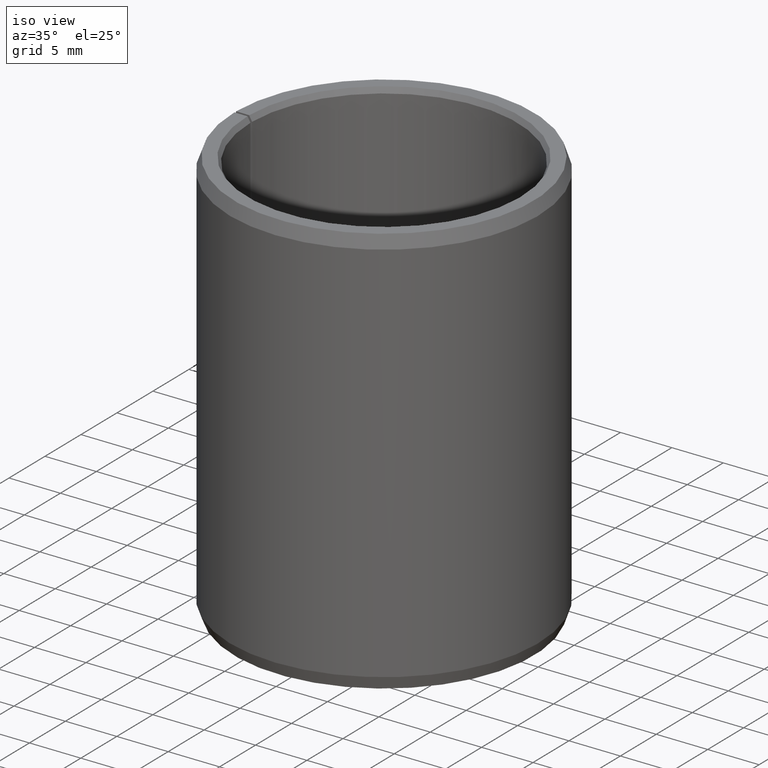
[diagram: clean part render]
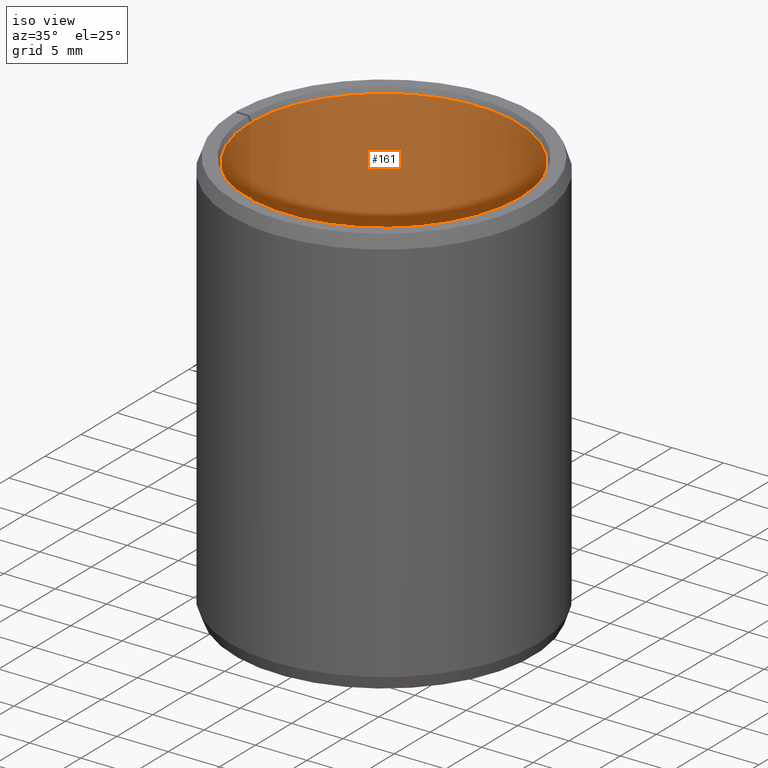
[diagram: same view with one face highlighted and labeled with its STEP entity id]
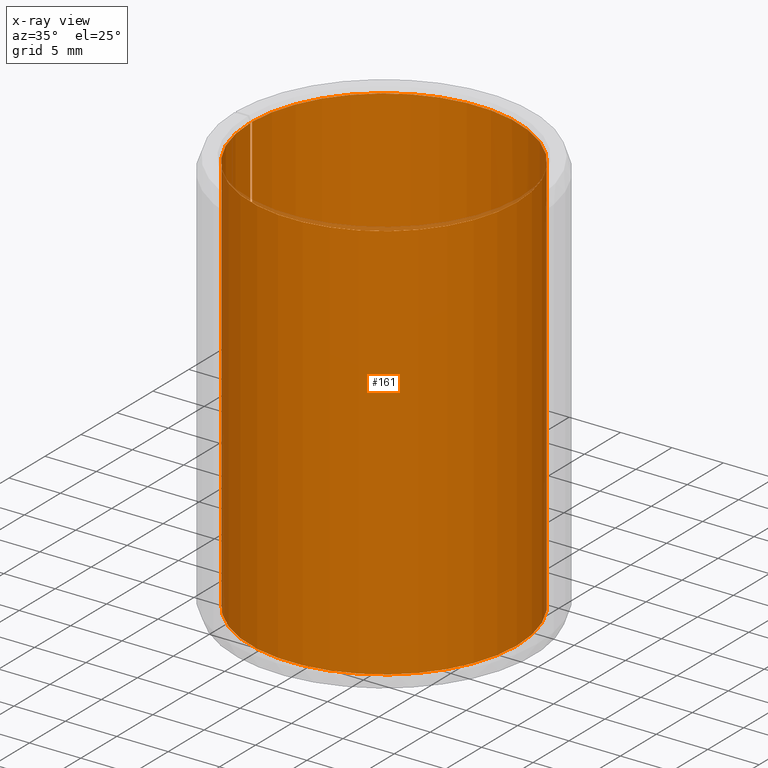
[diagram: x-ray of the same camera — body ghosted, the highlighted face saturated]
A machine part, iso view. The second image highlights one B-rep face of the part: STEP entity #161.
The next image is the same camera in x-ray: the body ghosted, the highlighted face saturated — about 2% of this face is hidden behind the body in this view.
In plain terms, the highlighted cylindrical surface (partial cylindrical patch) has radius 13 mm, axis along (-0, 0, -1).
Its self-contained STEP definition (entity closure, byte-faithful):
#161=ADVANCED_FACE('',(#182,#183),#184,.F.);
#182=FACE_OUTER_BOUND('',#208,.T.);
#183=FACE_BOUND('',#209,.T.);
#184=CYLINDRICAL_SURFACE('',#210,0.013);
#208=EDGE_LOOP('',(#281,#282,#283,#284));
#209=EDGE_LOOP('',(#285));
#210=AXIS2_PLACEMENT_3D('',#286,#287,#288);
#281=ORIENTED_EDGE('',*,*,#304,.T.);
#282=ORIENTED_EDGE('',*,*,#322,.F.);
#283=ORIENTED_EDGE('',*,*,#319,.F.);
#284=ORIENTED_EDGE('',*,*,#325,.T.);
#285=ORIENTED_EDGE('',*,*,#326,.T.);
#286=CARTESIAN_POINT('',(-6.93889390390723E-018,-6.93889390390723E-018,0.0));
#287=DIRECTION('',(6.12323399573677E-017,0.0,-1.0));
#288=DIRECTION('',(-1.0,0.0,-6.12323399573677E-017));
#304=EDGE_CURVE('',#333,#331,#334,.T.);
#319=EDGE_CURVE('',#359,#360,#361,.T.);
#322=EDGE_CURVE('',#360,#331,#364,.T.);
#325=EDGE_CURVE('',#359,#333,#367,.T.);
#326=EDGE_CURVE('',#368,#368,#369,.T.);
#331=VERTEX_POINT('',#375);
#333=VERTEX_POINT('',#378);
#334=CIRCLE('',#379,0.013);
#359=VERTEX_POINT('',#413);
#360=VERTEX_POINT('',#414);
#361=CIRCLE('',#415,0.013);
#364=LINE('',#420,#421);
#367=LINE('',#426,#427);
#368=VERTEX_POINT('',#428);
#369=B_SPLINE_CURVE_WITH_KNOTS('',3,(#429,#430,#431,#432,#433,#434,#435,#436,#437,#438,#439,#440,#441,#442,#443,#444,#445,#446,#447,#448,#449,#450,#451,#452,#453,#454,#455,#456,#457,#458,#459,#460,#461,#462,#463,#464,#465,#466,#467,#468,#469,#470,#471,#472,#473,#474,#475,#476,#477,#478,#479,#480,#481,#482,#483,#484,#485,#486,#487,#488,#489,#490),.UNSPECIFIED.,.T.,.F.,(2,2,2,2,2,2,2,2,2,2,2,2,2,2,2,2,2,2,2,2,2,2,2,2,2,2,2,2,2,2,2,2,2),(-0.000588115938674232,0.0,0.000588115938674229,0.00117623187734846,0.00176434781602269,0.00235246375469691,0.00294057969337114,0.00352869563204537,0.0041168115707196,0.00470492750939383,0.00529304344806806,0.00588115938674229,0.00646927532541651,0.00705739126409074,0.00764550720276497,0.0082336231414392,0.00882173908011343,0.00940985501878766,0.0105860868961361,0.0111742028348104,0.0117623187734846,0.0123504347121588,0.012938550650833,0.0141147825281815,0.0147028984668557,0.01529101440553,0.0158791303442042,0.0164672462828784,0.0170553622215526,0.0176434781602269,0.0182315940989011,0.0188197100375753,0.0194078259762496),.UNSPECIFIED.);
#375=CARTESIAN_POINT('',(-6.93889390390723E-018,0.013,0.0005));
#378=CARTESIAN_POINT('',(0.00022688128368468,0.0129980200370331,0.0005));
#379=AXIS2_PLACEMENT_3D('',#560,#561,#562);
#413=CARTESIAN_POINT('',(0.000226881283684678,0.0129980200370331,0.0395));
#414=CARTESIAN_POINT('',(-8.67361737988404E-018,0.013,0.0395));
#415=AXIS2_PLACEMENT_3D('',#587,#588,#589);
#420=CARTESIAN_POINT('',(-8.67361737988404E-018,0.013,0.0395));
#421=VECTOR('',#592,1.0);
#426=CARTESIAN_POINT('',(0.000226881283684678,0.0129980200370331,0.0395));
#427=VECTOR('',#595,1.0);
#428=CARTESIAN_POINT('',(0.00929728979945005,-0.00908627549577064,0.02));
#429=CARTESIAN_POINT('',(0.00929728979945005,-0.00908627549577064,0.0201989157082192));
#430=CARTESIAN_POINT('',(0.00929728979945005,-0.00908627549577064,0.0198010842917807));
#431=CARTESIAN_POINT('',(0.00931139817799047,-0.00907190225823773,0.019605631631804));
#432=CARTESIAN_POINT('',(0.00936611503513822,-0.00901539992239173,0.019221324873248));
#433=CARTESIAN_POINT('',(0.00940741089454677,-0.00897254565877377,0.019030437384424));
#434=CARTESIAN_POINT('',(0.00951327012871062,-0.0088602283715376,0.0186674898008351));
#435=CARTESIAN_POINT('',(0.00957740332189922,-0.0087912253245028,0.0184954551620648));
#436=CARTESIAN_POINT('',(0.00972598011278978,-0.0086265640867105,0.0181698732400995));
#437=CARTESIAN_POINT('',(0.00981087209807339,-0.00853031745320233,0.0180162632339704));
#438=CARTESIAN_POINT('',(0.0099919722469823,-0.00831745260237164,0.0177405942034214));
#439=CARTESIAN_POINT('',(0.0100889367607007,-0.00820003975402716,0.0176166447005962));
#440=CARTESIAN_POINT('',(0.0102940741396144,-0.0079409907780558,0.017397289957311));
#441=CARTESIAN_POINT('',(0.0103999645079853,-0.00780214852596706,0.0173045227165322));
#442=CARTESIAN_POINT('',(0.0106132223267488,-0.00750948035696232,0.0171546624647469));
#443=CARTESIAN_POINT('',(0.0107221123297463,-0.00735349808481569,0.0170966796869884));
#444=CARTESIAN_POINT('',(0.0109367371952506,-0.0070303205060017,0.0170193388028959));
#445=CARTESIAN_POINT('',(0.0110410563306475,-0.00686539483584787,0.0170001205031187));
#446=CARTESIAN_POINT('',(0.0112434059858247,-0.00652873594094131,0.0169998806158374));
#447=CARTESIAN_POINT('',(0.011342264592137,-0.00635533014440286,0.0170195202487443));
#448=CARTESIAN_POINT('',(0.0115257807545716,-0.00601610881882536,0.0170963614482619));
#449=CARTESIAN_POINT('',(0.0116113371508997,-0.00584895268564022,0.0171532077614402));
#450=CARTESIAN_POINT('',(0.0117711627877684,-0.00552024678565886,0.0173041246378501));
#451=CARTESIAN_POINT('',(0.0118444431689657,-0.0053605870958801,0.0173977403931483));
#452=CARTESIAN_POINT('',(0.0119755046056225,-0.00506102928623115,0.0176145714787194));
#453=CARTESIAN_POINT('',(0.012034362076845,-0.00491874208379484,0.0177393545307701));
#454=CARTESIAN_POINT('',(0.0121382510397824,-0.00465647462988058,0.018017617591275));
#455=CARTESIAN_POINT('',(0.012182434411053,-0.00453878121964329,0.0181683366117685));
#456=CARTESIAN_POINT('',(0.0122579269671041,-0.00433075854886136,0.0184925910632962));
#457=CARTESIAN_POINT('',(0.0122894422274765,-0.00423975670597719,0.0186682525453787));
#458=CARTESIAN_POINT('',(0.0123387955993382,-0.0040939040470085,0.0190304908760893));
#459=CARTESIAN_POINT('',(0.0123569410576353,-0.00403826500986523,0.0192174821970901));
#460=CARTESIAN_POINT('',(0.0123813786812032,-0.00396270596239752,0.0196034326594096));
#461=CARTESIAN_POINT('',(0.0123874924780217,-0.00394335264896871,0.0198025887940825));
#462=CARTESIAN_POINT('',(0.0123875695430586,-0.00394311055444487,0.0203910415437104));
#463=CARTESIAN_POINT('',(0.0123635274019217,-0.0040207801800044,0.0207870972485671));
#464=CARTESIAN_POINT('',(0.0122898662597692,-0.00423852074260371,0.021329075208232));
#465=CARTESIAN_POINT('',(0.0122585331114914,-0.0043290530389067,0.0215044685264383));
#466=CARTESIAN_POINT('',(0.0121827826186984,-0.00453785653417317,0.021830500465307));
#467=CARTESIAN_POINT('',(0.0121386096230333,-0.00465550994438234,0.0219811095566304));
#468=CARTESIAN_POINT('',(0.0120354891288734,-0.00491595543627173,0.022257934631748));
#469=CARTESIAN_POINT('',(0.0119761210304075,-0.00505957065725904,0.0223842322748958));
#470=CARTESIAN_POINT('',(0.0118450905958072,-0.00535915655191067,0.0226013632147855));
#471=CARTESIAN_POINT('',(0.0117729474020318,-0.00551644761022646,0.0226938369059211));
#472=CARTESIAN_POINT('',(0.0115330479420145,-0.00601021998238986,0.0229214128598247));
#473=CARTESIAN_POINT('',(0.0113479694576776,-0.00635455411503189,0.0229997645561234));
#474=CARTESIAN_POINT('',(0.0110421525781504,-0.00686367675842615,0.0230001169298978));
#475=CARTESIAN_POINT('',(0.0109377657217392,-0.00702868534077101,0.0229808274273991));
#476=CARTESIAN_POINT('',(0.0107246227760454,-0.00734980291672841,0.0229044259993158));
#477=CARTESIAN_POINT('',(0.0106148363148817,-0.00750721629720439,0.0228463314850796));
#478=CARTESIAN_POINT('',(0.0104007708033993,-0.00780109051478684,0.0226961825354363));
#479=CARTESIAN_POINT('',(0.0102956638692547,-0.0079389218998833,0.0226041625979109));
#480=CARTESIAN_POINT('',(0.0100910426861032,-0.00819744063402513,0.0223858501036057));
#481=CARTESIAN_POINT('',(0.0099926803602708,-0.00831660125140312,0.0222603530005565));
#482=CARTESIAN_POINT('',(0.00981164539424319,-0.00852942740252874,0.0219850434850607));
#483=CARTESIAN_POINT('',(0.00972760916264427,-0.00862473856388133,0.0218333953533095));
#484=CARTESIAN_POINT('',(0.00957785955988763,-0.00879073953473379,0.0215058416463024));
#485=CARTESIAN_POINT('',(0.00951372034194745,-0.0088597426378961,0.0213336669464154));
#486=CARTESIAN_POINT('',(0.00940823397702634,-0.00897168032132588,0.0209727668274811));
#487=CARTESIAN_POINT('',(0.0093666760316395,-0.00901481882617789,0.0207819399640915));
#488=CARTESIAN_POINT('',(0.00931140238042744,-0.00907189969412532,0.0203950663535035));
#489=CARTESIAN_POINT('',(0.00929728979945005,-0.00908627549577064,0.0201989157082192));
#490=CARTESIAN_POINT('',(0.00929728979945005,-0.00908627549577064,0.0198010842917807));
#560=CARTESIAN_POINT('',(-6.93889390390723E-018,-6.93889390390723E-018,0.0005));
#561=DIRECTION('',(6.12323399573677E-017,0.0,-1.0));
#562=DIRECTION('',(-1.0,0.0,-6.12323399573677E-017));
#587=CARTESIAN_POINT('',(-8.67361737988404E-018,-6.93889390390723E-018,0.0395));
#588=DIRECTION('',(6.12323399573677E-017,0.0,-1.0));
#589=DIRECTION('',(-1.0,0.0,-6.12323399573677E-017));
#592=DIRECTION('',(4.44800891276104E-017,1.77920356510441E-016,-1.0));
#595=DIRECTION('',(4.75877789518398E-017,1.78185625468589E-016,-1.0));